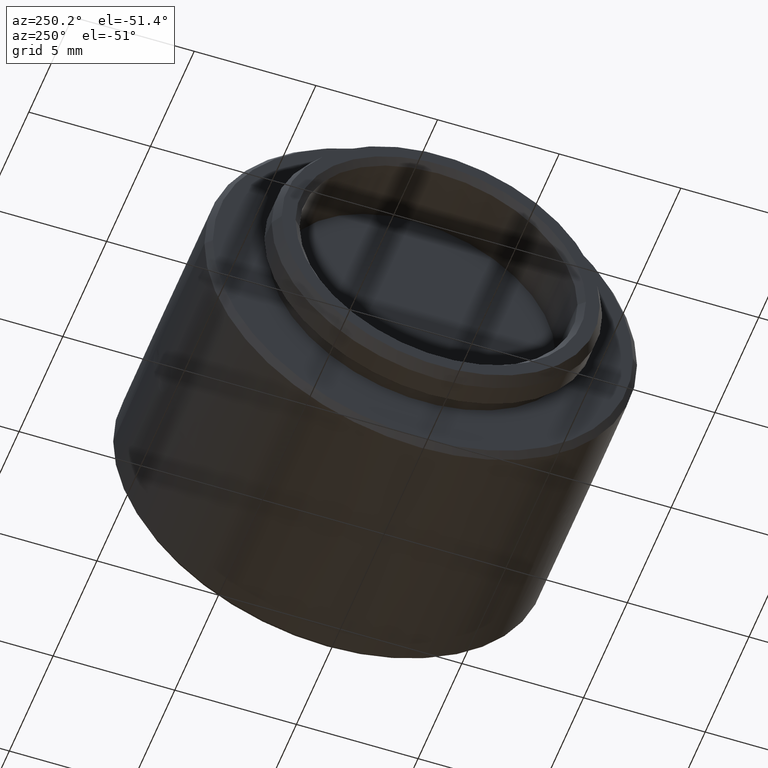
[diagram: clean part render]
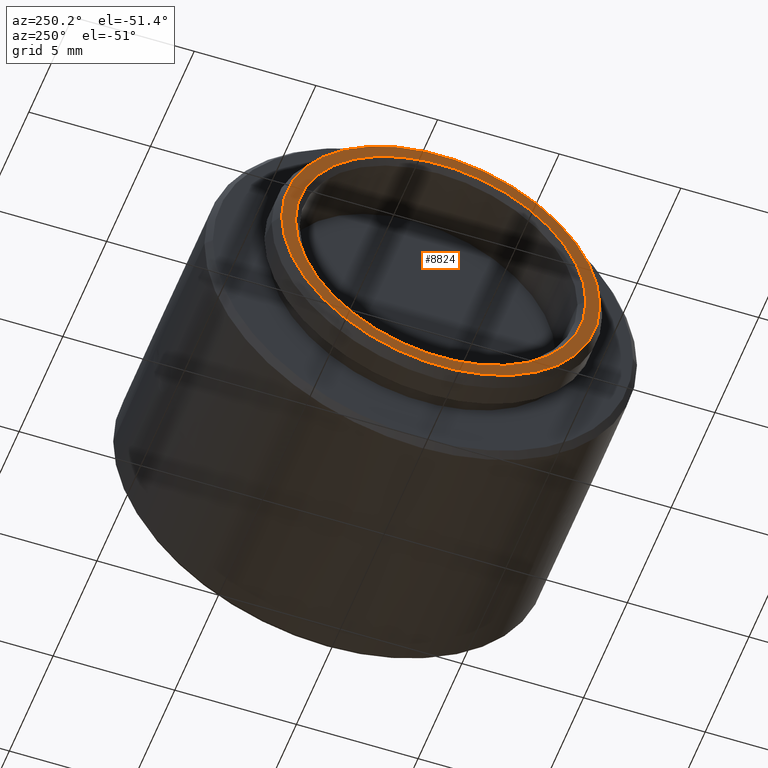
[diagram: same view with one face highlighted and labeled with its STEP entity id]
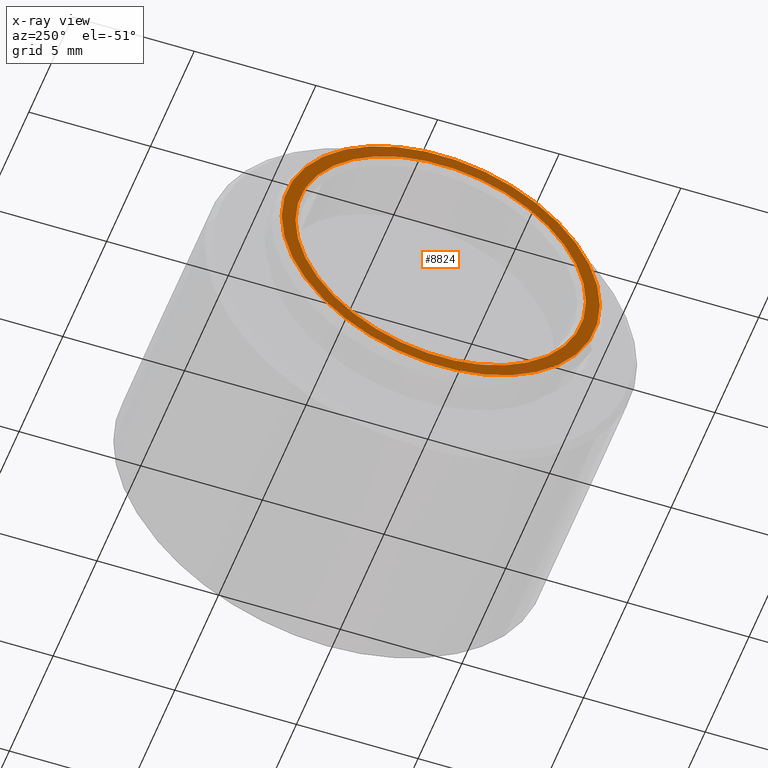
[diagram: x-ray of the same camera — body ghosted, the highlighted face saturated]
A machine part, auxiliary view. The second image highlights one B-rep face of the part: STEP entity #8824.
The next image is the same camera in x-ray: the body ghosted, the highlighted face saturated — about 0% of this face is hidden behind the body in this view.
In plain terms, the highlighted planar face has unit normal (-1, -0, 0).
Its self-contained STEP definition (entity closure, byte-faithful):
#296 = ORIENTED_EDGE ( 'NONE', *, *, #9629, .T. ) ;
#1456 = DIRECTION ( 'NONE',  ( 3.361775527071165300E-016, -1.000000000000000000, 0.0000000000000000000 ) ) ;
#1611 = CARTESIAN_POINT ( 'NONE',  ( -0.2550000000000000600, 0.2349999999999997400, 2.877919977996277400E-017 ) ) ;
#2167 = EDGE_CURVE ( 'NONE', #7129, #5642, #6948, .T. ) ;
#2242 = EDGE_LOOP ( 'NONE', ( #5883, #5183 ) ) ;
#2498 = FACE_OUTER_BOUND ( 'NONE', #5211, .T. ) ;
#2805 = AXIS2_PLACEMENT_3D ( 'NONE', #8212, #3612, #9020 ) ;
#3106 = EDGE_CURVE ( 'NONE', #3362, #5722, #9953, .T. ) ;
#3362 = VERTEX_POINT ( 'NONE', #1611 ) ;
#3574 = EDGE_CURVE ( 'NONE', #5722, #3362, #4965, .T. ) ;
#3612 = DIRECTION ( 'NONE',  ( 1.000000000000000000, 3.361775527071165300E-016, -0.0000000000000000000 ) ) ;
#3816 = CARTESIAN_POINT ( 'NONE',  ( -0.2550000000000000000, -4.194415287079684100E-017, 0.0000000000000000000 ) ) ;
#4099 = DIRECTION ( 'NONE',  ( -1.000000000000000000, -3.361775527071165300E-016, 0.0000000000000000000 ) ) ;
#4197 = CARTESIAN_POINT ( 'NONE',  ( -0.2550000000000000000, -4.194415287079682800E-017, 0.0000000000000000000 ) ) ;
#4550 = AXIS2_PLACEMENT_3D ( 'NONE', #4197, #9606, #4952 ) ;
#4591 = DIRECTION ( 'NONE',  ( 3.978419408248932300E-016, -1.000000000000000000, 0.0000000000000000000 ) ) ;
#4657 = ORIENTED_EDGE ( 'NONE', *, *, #2167, .T. ) ;
#4952 = DIRECTION ( 'NONE',  ( 2.906221269855601800E-016, -1.000000000000000000, 0.0000000000000000000 ) ) ;
#4965 = CIRCLE ( 'NONE', #2805, 0.2349999999999997900 ) ;
#5183 = ORIENTED_EDGE ( 'NONE', *, *, #3106, .T. ) ;
#5211 = EDGE_LOOP ( 'NONE', ( #296, #4657 ) ) ;
#5262 = PLANE ( 'NONE',  #6441 ) ;
#5642 = VERTEX_POINT ( 'NONE', #9045 ) ;
#5722 = VERTEX_POINT ( 'NONE', #7839 ) ;
#5883 = ORIENTED_EDGE ( 'NONE', *, *, #3574, .T. ) ;
#6043 = DIRECTION ( 'NONE',  ( -1.000000000000000000, -3.361775527071165300E-016, 0.0000000000000000000 ) ) ;
#6441 = AXIS2_PLACEMENT_3D ( 'NONE', #8325, #6043, #1456 ) ;
#6574 = FACE_BOUND ( 'NONE', #2242, .T. ) ;
#6769 = AXIS2_PLACEMENT_3D ( 'NONE', #8713, #4099, #9512 ) ;
#6948 = CIRCLE ( 'NONE', #9592, 0.2574999999999996700 ) ;
#7129 = VERTEX_POINT ( 'NONE', #7531 ) ;
#7531 = CARTESIAN_POINT ( 'NONE',  ( -0.2549999999999998900, -0.2574999999999997300, 3.214697847761800000E-017 ) ) ;
#7839 = CARTESIAN_POINT ( 'NONE',  ( -0.2549999999999998900, -0.2349999999999998200, 0.0000000000000000000 ) ) ;
#8212 = CARTESIAN_POINT ( 'NONE',  ( -0.2550000000000000000, -4.194415287079682800E-017, 0.0000000000000000000 ) ) ;
#8325 = CARTESIAN_POINT ( 'NONE',  ( -0.2550000000000000600, 0.2674999999999999000, 0.0000000000000000000 ) ) ;
#8713 = CARTESIAN_POINT ( 'NONE',  ( -0.2550000000000000000, -4.194415287079684100E-017, 0.0000000000000000000 ) ) ;
#8824 = ADVANCED_FACE ( 'NONE', ( #6574, #2498 ), #5262, .T. ) ;
#9020 = DIRECTION ( 'NONE',  ( 2.906221269855601800E-016, -1.000000000000000000, 0.0000000000000000000 ) ) ;
#9045 = CARTESIAN_POINT ( 'NONE',  ( -0.2550000000000000600, 0.2574999999999996200, 0.0000000000000000000 ) ) ;
#9221 = DIRECTION ( 'NONE',  ( -1.000000000000000000, -3.361775527071165300E-016, 0.0000000000000000000 ) ) ;
#9512 = DIRECTION ( 'NONE',  ( 3.978419408248932300E-016, -1.000000000000000000, 0.0000000000000000000 ) ) ;
#9592 = AXIS2_PLACEMENT_3D ( 'NONE', #3816, #9221, #4591 ) ;
#9606 = DIRECTION ( 'NONE',  ( 1.000000000000000000, 3.361775527071165300E-016, -0.0000000000000000000 ) ) ;
#9629 = EDGE_CURVE ( 'NONE', #5642, #7129, #9839, .T. ) ;
#9839 = CIRCLE ( 'NONE', #6769, 0.2574999999999996700 ) ;
#9953 = CIRCLE ( 'NONE', #4550, 0.2349999999999997900 ) ;